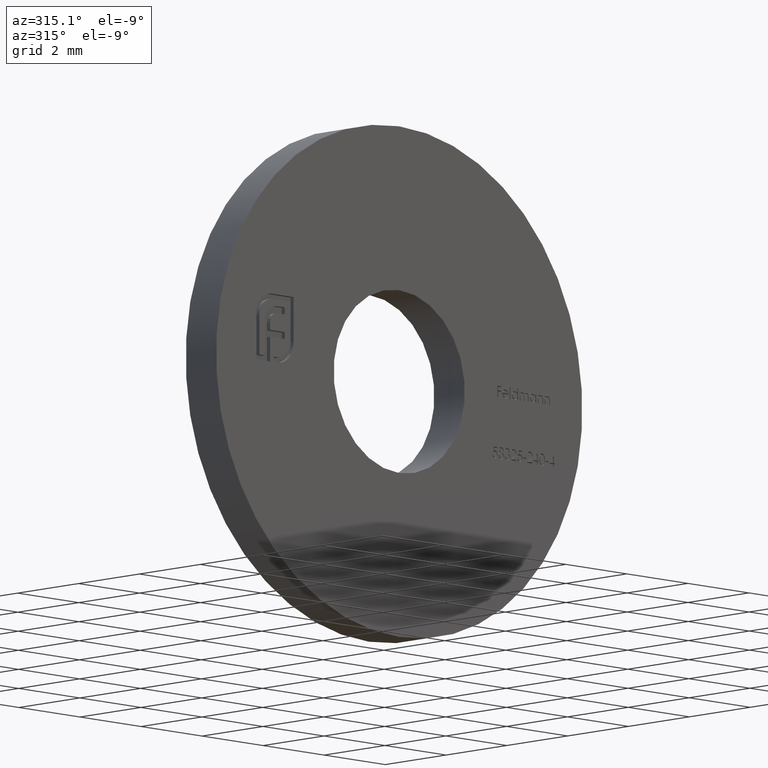
[diagram: clean part render]
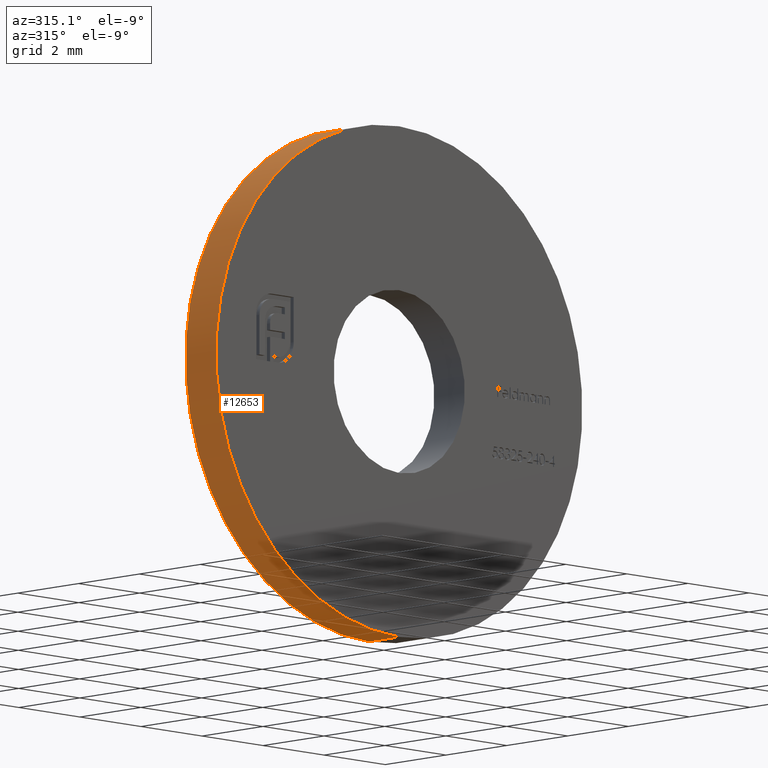
[diagram: same view with one face highlighted and labeled with its STEP entity id]
A machine part, auxiliary view. The second image highlights one B-rep face of the part: STEP entity #12653.
In plain terms, the highlighted cylindrical surface (partial cylindrical patch) has radius 6 mm, axis along (-0, -1, -0).
Its self-contained STEP definition (entity closure, byte-faithful):
#356 = DIRECTION ( 'NONE',  ( -0.000000000000000000, -1.000000000000000000, -0.000000000000000000 ) ) ;
#418 = VERTEX_POINT ( 'NONE', #13157 ) ;
#623 = ORIENTED_EDGE ( 'NONE', *, *, #1447, .F. ) ;
#1106 = DIRECTION ( 'NONE',  ( 0.000000000000000000, 1.000000000000000000, 0.000000000000000000 ) ) ;
#1218 = CARTESIAN_POINT ( 'NONE',  ( 0.000000000000000000, 0.5000000000000000000, -6.000000000000000888 ) ) ;
#1404 = AXIS2_PLACEMENT_3D ( 'NONE', #12658, #5430, #2836 ) ;
#1447 = EDGE_CURVE ( 'NONE', #12001, #418, #7489, .T. ) ;
#1833 = CARTESIAN_POINT ( 'NONE',  ( 0.000000000000000000, 0.5000000000000000000, -6.000000000000000888 ) ) ;
#2048 = CARTESIAN_POINT ( 'NONE',  ( 0.000000000000000000, 0.5000000000000000000, 0.000000000000000000 ) ) ;
#2152 = EDGE_CURVE ( 'NONE', #12962, #3618, #11316, .T. ) ;
#2836 = DIRECTION ( 'NONE',  ( 0.000000000000000000, 0.000000000000000000, -1.000000000000000000 ) ) ;
#3421 = CYLINDRICAL_SURFACE ( 'NONE', #1404, 6.000000000000000888 ) ;
#3524 = DIRECTION ( 'NONE',  ( 0.000000000000000000, 0.000000000000000000, 1.000000000000000000 ) ) ;
#3618 = VERTEX_POINT ( 'NONE', #10906 ) ;
#3756 = AXIS2_PLACEMENT_3D ( 'NONE', #2048, #14667, #3524 ) ;
#3805 = DIRECTION ( 'NONE',  ( 0.000000000000000000, 0.000000000000000000, 1.000000000000000000 ) ) ;
#3934 = CIRCLE ( 'NONE', #3756, 6.000000000000000888 ) ;
#4061 = CARTESIAN_POINT ( 'NONE',  ( 7.347880794884120722E-16, 0.5000000000000000000, 6.000000000000000888 ) ) ;
#4158 = ORIENTED_EDGE ( 'NONE', *, *, #5643, .F. ) ;
#4875 = CARTESIAN_POINT ( 'NONE',  ( 0.000000000000000000, -0.5000000000000000000, 0.000000000000000000 ) ) ;
#5262 = AXIS2_PLACEMENT_3D ( 'NONE', #4875, #1106, #3805 ) ;
#5430 = DIRECTION ( 'NONE',  ( -0.000000000000000000, -1.000000000000000000, -0.000000000000000000 ) ) ;
#5643 = EDGE_CURVE ( 'NONE', #12962, #12001, #3934, .T. ) ;
#6216 = FACE_OUTER_BOUND ( 'NONE', #7999, .T. ) ;
#7489 = LINE ( 'NONE', #4061, #10413 ) ;
#7999 = EDGE_LOOP ( 'NONE', ( #623, #4158, #13727, #12738 ) ) ;
#10069 = EDGE_CURVE ( 'NONE', #3618, #418, #10754, .T. ) ;
#10413 = VECTOR ( 'NONE', #356, 1000.000000000000000 ) ;
#10754 = CIRCLE ( 'NONE', #5262, 6.000000000000000888 ) ;
#10906 = CARTESIAN_POINT ( 'NONE',  ( 0.000000000000000000, -0.5000000000000000000, -6.000000000000000888 ) ) ;
#11316 = LINE ( 'NONE', #1833, #16024 ) ;
#12001 = VERTEX_POINT ( 'NONE', #14546 ) ;
#12653 = ADVANCED_FACE ( 'NONE', ( #6216 ), #3421, .T. ) ;
#12658 = CARTESIAN_POINT ( 'NONE',  ( 0.000000000000000000, 0.5000000000000000000, 0.000000000000000000 ) ) ;
#12738 = ORIENTED_EDGE ( 'NONE', *, *, #10069, .T. ) ;
#12962 = VERTEX_POINT ( 'NONE', #1218 ) ;
#13157 = CARTESIAN_POINT ( 'NONE',  ( 7.347880794884120722E-16, -0.5000000000000000000, 6.000000000000000888 ) ) ;
#13727 = ORIENTED_EDGE ( 'NONE', *, *, #2152, .T. ) ;
#14546 = CARTESIAN_POINT ( 'NONE',  ( 7.347880794884120722E-16, 0.5000000000000000000, 6.000000000000000888 ) ) ;
#14667 = DIRECTION ( 'NONE',  ( 0.000000000000000000, 1.000000000000000000, 0.000000000000000000 ) ) ;
#15425 = DIRECTION ( 'NONE',  ( -0.000000000000000000, -1.000000000000000000, -0.000000000000000000 ) ) ;
#16024 = VECTOR ( 'NONE', #15425, 1000.000000000000000 ) ;